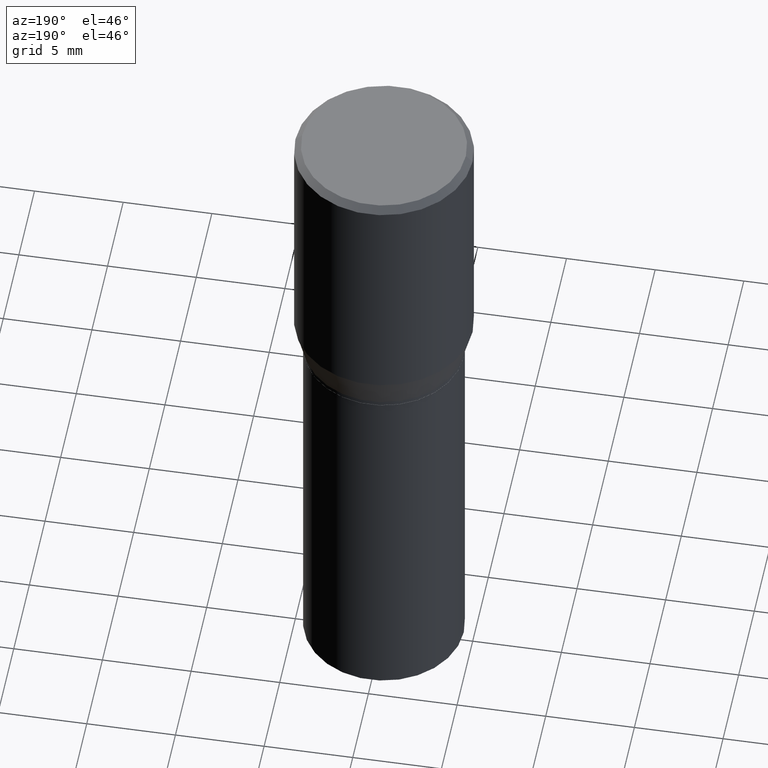
[diagram: clean part render]
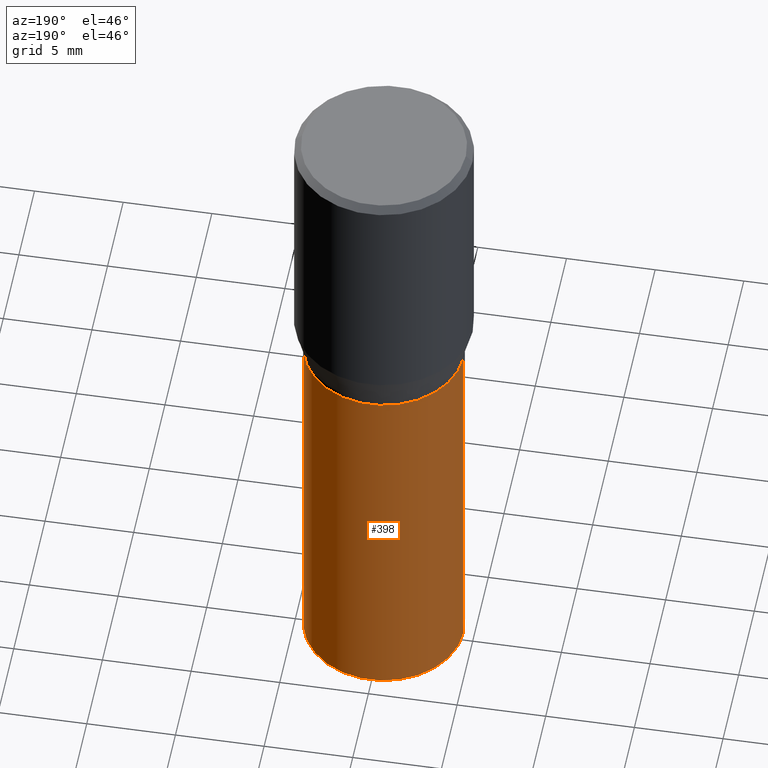
[diagram: same view with one face highlighted and labeled with its STEP entity id]
A machine part, auxiliary view. The second image highlights one B-rep face of the part: STEP entity #398.
In plain terms, the highlighted cylindrical surface (partial cylindrical patch) has radius 4.4996 mm, axis along (-0, 0, 1).
Its self-contained STEP definition (entity closure, byte-faithful):
#22 = EDGE_LOOP ( 'NONE', ( #157, #115, #440, #118 ) ) ;
#44 = AXIS2_PLACEMENT_3D ( 'NONE', #213, #130, #326 ) ;
#47 = CARTESIAN_POINT ( 'NONE',  ( 0.1771500000000000019, -6.474253846616840571E-15, -1.500000000000000222 ) ) ;
#56 = VERTEX_POINT ( 'NONE', #233 ) ;
#63 = LINE ( 'NONE', #318, #301 ) ;
#82 = LINE ( 'NONE', #193, #396 ) ;
#102 = FACE_OUTER_BOUND ( 'NONE', #22, .T. ) ;
#115 = ORIENTED_EDGE ( 'NONE', *, *, #272, .T. ) ;
#118 = ORIENTED_EDGE ( 'NONE', *, *, #145, .F. ) ;
#120 = DIRECTION ( 'NONE',  ( -2.445468806185136877E-29, 3.491481338843145188E-15, 1.000000000000000000 ) ) ;
#130 = DIRECTION ( 'NONE',  ( -2.445468806185136597E-29, 3.491481338843145583E-15, 1.000000000000000000 ) ) ;
#139 = DIRECTION ( 'NONE',  ( -2.445468806185136877E-29, 3.491481338843145188E-15, 1.000000000000000000 ) ) ;
#145 = EDGE_CURVE ( 'NONE', #463, #341, #82, .T. ) ;
#151 = CIRCLE ( 'NONE', #462, 0.1771500000000000019 ) ;
#157 = ORIENTED_EDGE ( 'NONE', *, *, #365, .T. ) ;
#161 = VERTEX_POINT ( 'NONE', #199 ) ;
#193 = CARTESIAN_POINT ( 'NONE',  ( 0.1771500000000000019, -1.237031838352122197E-15, 8.638147158322499960E-30 ) ) ;
#199 = CARTESIAN_POINT ( 'NONE',  ( -0.1771500000000000019, -2.466509558079677081E-15, -1.500000000000000222 ) ) ;
#213 = CARTESIAN_POINT ( 'NONE',  ( 0.000000000000000000, 0.000000000000000000, 0.000000000000000000 ) ) ;
#219 = DIRECTION ( 'NONE',  ( 1.000000000000000000, -6.982962677686266711E-15, 0.000000000000000000 ) ) ;
#233 = CARTESIAN_POINT ( 'NONE',  ( -0.1771500000000000019, -2.466509558079677081E-15, -0.6339000000000001300 ) ) ;
#252 = AXIS2_PLACEMENT_3D ( 'NONE', #287, #420, #269 ) ;
#269 = DIRECTION ( 'NONE',  ( 1.000000000000000000, -6.982962677686266711E-15, 0.000000000000000000 ) ) ;
#272 = EDGE_CURVE ( 'NONE', #161, #56, #63, .T. ) ;
#276 = CYLINDRICAL_SURFACE ( 'NONE', #44, 0.1771500000000000019 ) ;
#286 = EDGE_CURVE ( 'NONE', #341, #56, #400, .T. ) ;
#287 = CARTESIAN_POINT ( 'NONE',  ( 1.550182676240758652E-29, -2.213250020692670577E-15, -0.6339000000000001300 ) ) ;
#301 = VECTOR ( 'NONE', #139, 39.37007874015748143 ) ;
#311 = CARTESIAN_POINT ( 'NONE',  ( 3.668203209277704895E-29, -5.237222008264718177E-15, -1.500000000000000222 ) ) ;
#318 = CARTESIAN_POINT ( 'NONE',  ( -0.1771500000000000019, 1.258726456399017493E-15, -8.713893512386565325E-30 ) ) ;
#326 = DIRECTION ( 'NONE',  ( 1.000000000000000000, -6.982962677686266711E-15, 4.876176775795935793E-29 ) ) ;
#341 = VERTEX_POINT ( 'NONE', #353 ) ;
#351 = DIRECTION ( 'NONE',  ( -2.445468806185136597E-29, 3.491481338843145583E-15, 1.000000000000000000 ) ) ;
#353 = CARTESIAN_POINT ( 'NONE',  ( 0.1771500000000000019, -3.450281859044792971E-15, -0.6339000000000001300 ) ) ;
#365 = EDGE_CURVE ( 'NONE', #463, #161, #151, .T. ) ;
#396 = VECTOR ( 'NONE', #120, 39.37007874015748143 ) ;
#398 = ADVANCED_FACE ( 'NONE', ( #102 ), #276, .T. ) ;
#400 = CIRCLE ( 'NONE', #252, 0.1771500000000000019 ) ;
#420 = DIRECTION ( 'NONE',  ( -2.445468806185136597E-29, 3.491481338843145583E-15, 1.000000000000000000 ) ) ;
#440 = ORIENTED_EDGE ( 'NONE', *, *, #286, .F. ) ;
#462 = AXIS2_PLACEMENT_3D ( 'NONE', #311, #351, #219 ) ;
#463 = VERTEX_POINT ( 'NONE', #47 ) ;